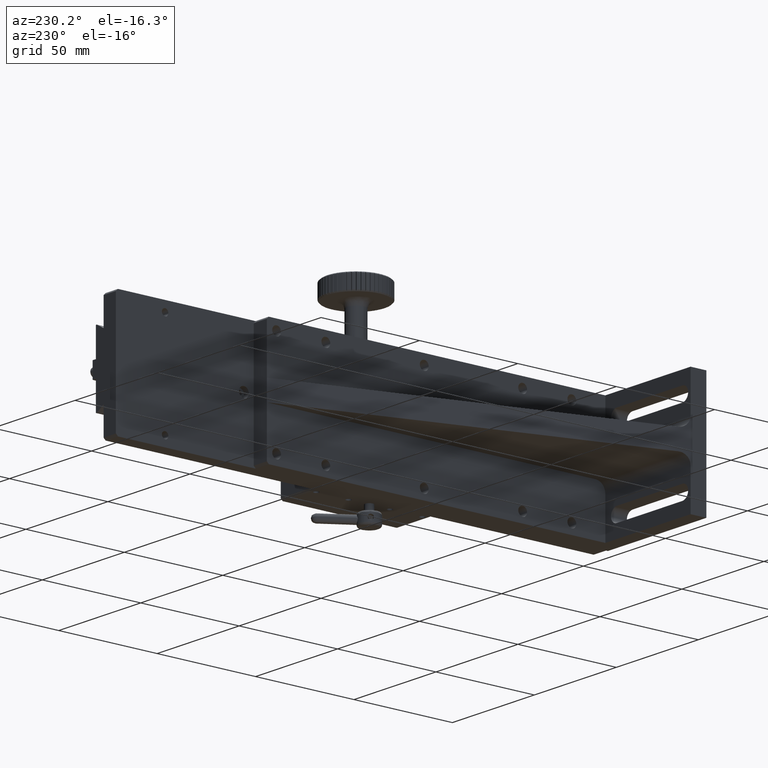
[diagram: clean part render]
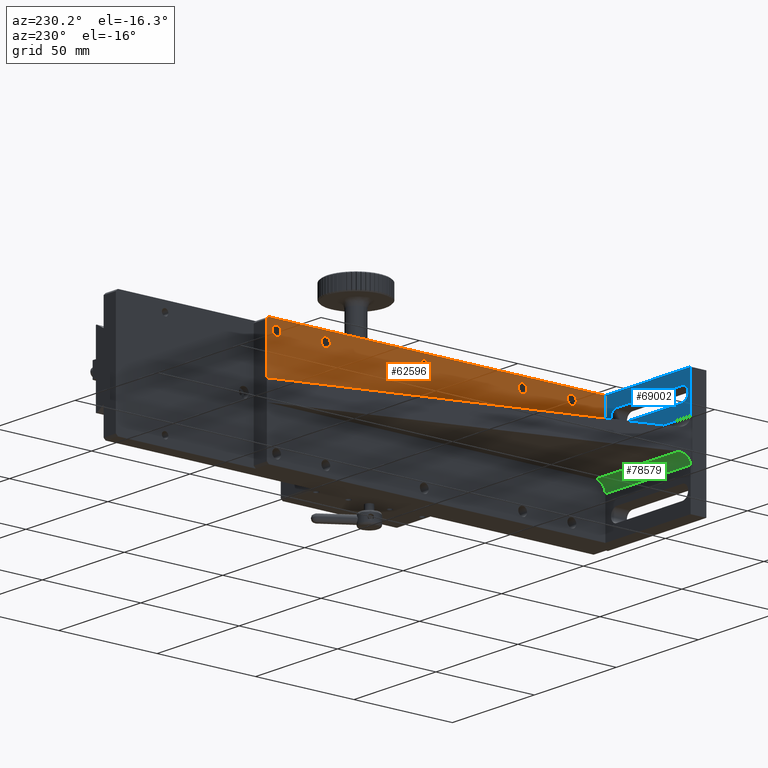
[diagram: same view with three faces highlighted in distinct colors, each labeled with its STEP entity id]
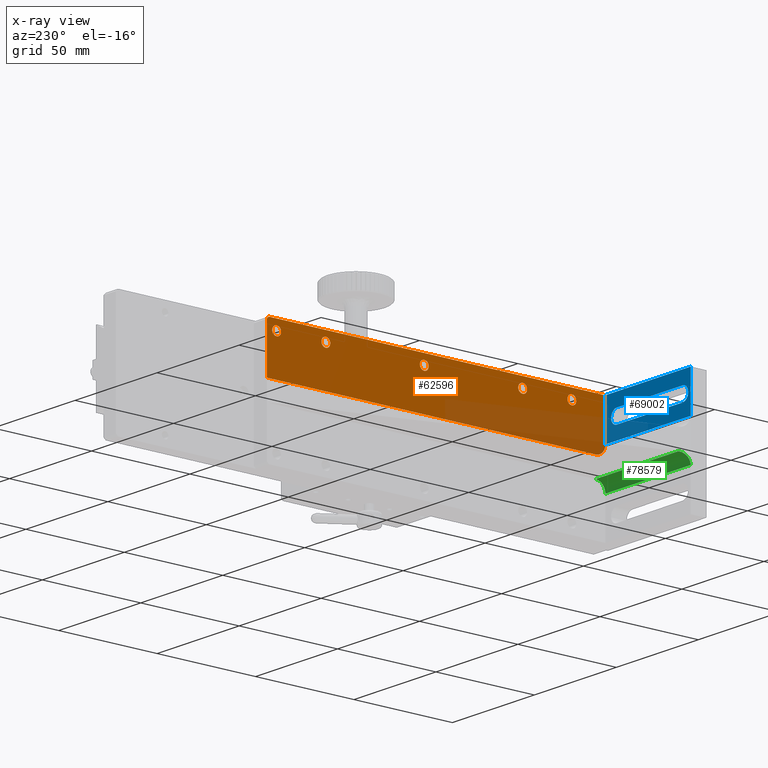
[diagram: x-ray of the same camera — body ghosted, the three highlighted faces saturated]
A machine part, auxiliary view with three faces highlighted in distinct colors.
The next image is the same camera in x-ray (body ghosted, the three faces saturated) — at least one of them is partly hidden behind the body in this view.
Their STEP definitions:

[orange] entity #62596 — the highlighted planar face has unit normal (1, -0, -0).
#465 = CARTESIAN_POINT ( 'NONE',  ( 55.70955724085325045, 176.1604683425934184, 147.9908711668431636 ) ) ;
#1467 = ORIENTED_EDGE ( 'NONE', *, *, #47193, .T. ) ;
#2368 = CARTESIAN_POINT ( 'NONE',  ( 55.70955724085324334, 276.1604683425934468, 145.7408711668431636 ) ) ;
#2511 = CARTESIAN_POINT ( 'NONE',  ( 55.70955724085322913, 226.1604683425933899, 143.4908711668431067 ) ) ;
#3060 = CARTESIAN_POINT ( 'NONE',  ( 55.70955724085327176, 306.1604683425933899, 150.7408711668431351 ) ) ;
#4088 = EDGE_LOOP ( 'NONE', ( #56648 ) ) ;
#5711 = CARTESIAN_POINT ( 'NONE',  ( 55.70955724085324334, 151.1604683425934184, 145.7408711668431636 ) ) ;
#7149 = VERTEX_POINT ( 'NONE', #93540 ) ;
#8177 = EDGE_CURVE ( 'NONE', #7149, #60804, #108530, .T. ) ;
#8209 = CARTESIAN_POINT ( 'NONE',  ( 55.70955724085309413, 139.1604683425934752, 125.7408711668431494 ) ) ;
#8615 = CIRCLE ( 'NONE', #69589, 2.250000000000001776 ) ;
#9620 = ORIENTED_EDGE ( 'NONE', *, *, #37493, .F. ) ;
#10706 = DIRECTION ( 'NONE',  ( 0.000000000000000000, -0.7071067811865376918, 0.7071067811865574537 ) ) ;
#11398 = CARTESIAN_POINT ( 'NONE',  ( 55.70955724085326466, 305.1604683425933899, 150.7408711668431351 ) ) ;
#14018 = DIRECTION ( 'NONE',  ( 1.000000000000000000, -0.000000000000000000, -6.982962677686266711E-15 ) ) ;
#14920 = CARTESIAN_POINT ( 'NONE',  ( 55.70955724085322913, 306.1604683425934468, 149.7408711668431351 ) ) ;
#18347 = AXIS2_PLACEMENT_3D ( 'NONE', #3060, #106808, #37297 ) ;
#19444 = CIRCLE ( 'NONE', #46282, 2.250000000000001776 ) ;
#19676 = LINE ( 'NONE', #29180, #45579 ) ;
#19927 = VERTEX_POINT ( 'NONE', #104044 ) ;
#20476 = FACE_BOUND ( 'NONE', #43266, .T. ) ;
#21032 = CARTESIAN_POINT ( 'NONE',  ( 55.70955724085325755, 276.1604683425934468, 147.9908711668431636 ) ) ;
#21567 = PLANE ( 'NONE',  #18347 ) ;
#21779 = VECTOR ( 'NONE', #100133, 1000.000000000000000 ) ;
#22661 = EDGE_CURVE ( 'NONE', #92389, #92389, #45335, .T. ) ;
#22768 = CIRCLE ( 'NONE', #62176, 5.000000000000004441 ) ;
#22830 = EDGE_LOOP ( 'NONE', ( #70249, #9620, #49365, #62587, #40779, #23261 ) ) ;
#23101 = DIRECTION ( 'NONE',  ( -6.167905692361976222E-15, 0.000000000000000000, -1.000000000000000000 ) ) ;
#23261 = ORIENTED_EDGE ( 'NONE', *, *, #8177, .T. ) ;
#24191 = CARTESIAN_POINT ( 'NONE',  ( 55.70955724085310123, 306.1604683425933899, 120.7408711668433199 ) ) ;
#24216 = VERTEX_POINT ( 'NONE', #58437 ) ;
#24896 = CARTESIAN_POINT ( 'NONE',  ( 55.70955724085325755, 134.1604683425934184, 150.7408711668431351 ) ) ;
#28074 = LINE ( 'NONE', #87579, #110502 ) ;
#28732 = DIRECTION ( 'NONE',  ( 1.000000000000000000, -0.000000000000000000, -6.982962677686266711E-15 ) ) ;
#28867 = FACE_BOUND ( 'NONE', #97398, .T. ) ;
#29180 = CARTESIAN_POINT ( 'NONE',  ( 55.70955724085310123, 306.1604683425933899, 125.7408711668431494 ) ) ;
#29874 = AXIS2_PLACEMENT_3D ( 'NONE', #95923, #52738, #88075 ) ;
#29959 = CIRCLE ( 'NONE', #101616, 2.250000000000001776 ) ;
#31502 = DIRECTION ( 'NONE',  ( 1.000000000000000000, 0.000000000000000000, -6.982962677686266711E-15 ) ) ;
#33609 = EDGE_CURVE ( 'NONE', #82048, #60804, #28074, .T. ) ;
#34108 = EDGE_CURVE ( 'NONE', #56783, #94596, #22768, .T. ) ;
#37297 = DIRECTION ( 'NONE',  ( -6.982962677686266711E-15, 0.000000000000000000, -1.000000000000000000 ) ) ;
#37493 = EDGE_CURVE ( 'NONE', #79415, #82048, #39349, .T. ) ;
#38341 = EDGE_CURVE ( 'NONE', #19927, #19927, #56795, .T. ) ;
#38415 = FACE_OUTER_BOUND ( 'NONE', #22830, .T. ) ;
#38963 = VERTEX_POINT ( 'NONE', #21032 ) ;
#39349 = LINE ( 'NONE', #24191, #78521 ) ;
#40678 = EDGE_CURVE ( 'NONE', #38963, #38963, #29959, .T. ) ;
#40779 = ORIENTED_EDGE ( 'NONE', *, *, #78210, .F. ) ;
#41494 = DIRECTION ( 'NONE',  ( 6.167905692361976222E-15, 0.000000000000000000, 1.000000000000000000 ) ) ;
#43266 = EDGE_LOOP ( 'NONE', ( #71581 ) ) ;
#44196 = CARTESIAN_POINT ( 'NONE',  ( 55.70955724085312966, 139.1604683425934752, 130.7408711668431636 ) ) ;
#45335 = CIRCLE ( 'NONE', #63281, 2.250000000000001776 ) ;
#45579 = VECTOR ( 'NONE', #53894, 1000.000000000000000 ) ;
#46282 = AXIS2_PLACEMENT_3D ( 'NONE', #5711, #31502, #23101 ) ;
#46983 = EDGE_LOOP ( 'NONE', ( #54453 ) ) ;
#47193 = EDGE_CURVE ( 'NONE', #24216, #24216, #19444, .T. ) ;
#49365 = ORIENTED_EDGE ( 'NONE', *, *, #71761, .F. ) ;
#52738 = DIRECTION ( 'NONE',  ( 1.000000000000000000, 0.000000000000000000, -6.982962677686266711E-15 ) ) ;
#53894 = DIRECTION ( 'NONE',  ( 6.051360962709793078E-17, 1.000000000000000000, -4.225642775181012154E-31 ) ) ;
#54453 = ORIENTED_EDGE ( 'NONE', *, *, #40678, .T. ) ;
#56648 = ORIENTED_EDGE ( 'NONE', *, *, #98504, .T. ) ;
#56783 = VERTEX_POINT ( 'NONE', #109452 ) ;
#56795 = CIRCLE ( 'NONE', #29874, 2.250000000000001776 ) ;
#58437 = CARTESIAN_POINT ( 'NONE',  ( 55.70955724085322913, 151.1604683425934184, 143.4908711668431636 ) ) ;
#60804 = VERTEX_POINT ( 'NONE', #11398 ) ;
#62176 = AXIS2_PLACEMENT_3D ( 'NONE', #44196, #110928, #68373 ) ;
#62587 = ORIENTED_EDGE ( 'NONE', *, *, #34108, .F. ) ;
#62596 = ADVANCED_FACE ( 'NONE', ( #38415, #81055, #106266, #20476, #28867, #79933 ), #21567, .F. ) ;
#63281 = AXIS2_PLACEMENT_3D ( 'NONE', #102818, #110672, #68124 ) ;
#68124 = DIRECTION ( 'NONE',  ( -6.167905692361976222E-15, 0.000000000000000000, -1.000000000000000000 ) ) ;
#68373 = DIRECTION ( 'NONE',  ( -6.938893903907222067E-15, 0.000000000000000000, -1.000000000000000000 ) ) ;
#69589 = AXIS2_PLACEMENT_3D ( 'NONE', #108205, #14018, #41494 ) ;
#70249 = ORIENTED_EDGE ( 'NONE', *, *, #33609, .F. ) ;
#71581 = ORIENTED_EDGE ( 'NONE', *, *, #38341, .T. ) ;
#71715 = EDGE_LOOP ( 'NONE', ( #73340 ) ) ;
#71761 = EDGE_CURVE ( 'NONE', #94596, #79415, #19676, .T. ) ;
#71974 = DIRECTION ( 'NONE',  ( 6.167905692361976222E-15, 0.000000000000000000, 1.000000000000000000 ) ) ;
#73340 = ORIENTED_EDGE ( 'NONE', *, *, #22661, .T. ) ;
#78210 = EDGE_CURVE ( 'NONE', #7149, #56783, #101717, .T. ) ;
#78521 = VECTOR ( 'NONE', #81439, 1000.000000000000000 ) ;
#79415 = VERTEX_POINT ( 'NONE', #93814 ) ;
#79933 = FACE_BOUND ( 'NONE', #71715, .T. ) ;
#81055 = FACE_BOUND ( 'NONE', #4088, .T. ) ;
#81439 = DIRECTION ( 'NONE',  ( 0.000000000000000000, -0.000000000000000000, 1.000000000000000000 ) ) ;
#82048 = VERTEX_POINT ( 'NONE', #14920 ) ;
#82229 = CARTESIAN_POINT ( 'NONE',  ( 55.70955724085325755, 306.1604683425933899, 150.7408711668431636 ) ) ;
#85304 = VECTOR ( 'NONE', #110666, 1000.000000000000000 ) ;
#87579 = CARTESIAN_POINT ( 'NONE',  ( 55.70955724085326466, 306.1604683425933899, 149.7408711668431920 ) ) ;
#88075 = DIRECTION ( 'NONE',  ( -6.167905692361976222E-15, 0.000000000000000000, -1.000000000000000000 ) ) ;
#92389 = VERTEX_POINT ( 'NONE', #2511 ) ;
#93085 = VERTEX_POINT ( 'NONE', #465 ) ;
#93540 = CARTESIAN_POINT ( 'NONE',  ( 55.70955724085325755, 134.1604683425934184, 150.7408711668431351 ) ) ;
#93814 = CARTESIAN_POINT ( 'NONE',  ( 55.70955724085308702, 306.1604683425933899, 125.7408711668431494 ) ) ;
#94596 = VERTEX_POINT ( 'NONE', #8209 ) ;
#95923 = CARTESIAN_POINT ( 'NONE',  ( 55.70955724085324334, 301.1604683425933899, 145.7408711668431067 ) ) ;
#97398 = EDGE_LOOP ( 'NONE', ( #1467 ) ) ;
#98504 = EDGE_CURVE ( 'NONE', #93085, #93085, #8615, .T. ) ;
#100133 = DIRECTION ( 'NONE',  ( 0.000000000000000000, 1.000000000000000000, 0.000000000000000000 ) ) ;
#101616 = AXIS2_PLACEMENT_3D ( 'NONE', #2368, #28732, #71974 ) ;
#101717 = LINE ( 'NONE', #24896, #85304 ) ;
#102818 = CARTESIAN_POINT ( 'NONE',  ( 55.70955724085324334, 226.1604683425933899, 145.7408711668431067 ) ) ;
#104044 = CARTESIAN_POINT ( 'NONE',  ( 55.70955724085323624, 301.1604683425933899, 143.4908711668431067 ) ) ;
#106266 = FACE_BOUND ( 'NONE', #46983, .T. ) ;
#106808 = DIRECTION ( 'NONE',  ( 1.000000000000000000, -6.051360962709793078E-17, -6.982962677686266711E-15 ) ) ;
#108205 = CARTESIAN_POINT ( 'NONE',  ( 55.70955724085324334, 176.1604683425934184, 145.7408711668431636 ) ) ;
#108530 = LINE ( 'NONE', #82229, #21779 ) ;
#109452 = CARTESIAN_POINT ( 'NONE',  ( 55.70955724085312255, 134.1604683425934184, 130.7408711668433625 ) ) ;
#110502 = VECTOR ( 'NONE', #10706, 999.9999999999998863 ) ;
#110666 = DIRECTION ( 'NONE',  ( -6.982962677686266711E-15, 0.000000000000000000, -1.000000000000000000 ) ) ;
#110672 = DIRECTION ( 'NONE',  ( 1.000000000000000000, 0.000000000000000000, -6.982962677686266711E-15 ) ) ;
#110928 = DIRECTION ( 'NONE',  ( 1.000000000000000000, -1.334402673828313339E-16, -6.982962677686266711E-15 ) ) ;

[blue] entity #69002 — the highlighted planar face has unit normal (-0, -1, 0).
#304 = ORIENTED_EDGE ( 'NONE', *, *, #31994, .F. ) ;
#712 = LINE ( 'NONE', #76505, #93936 ) ;
#1044 = VERTEX_POINT ( 'NONE', #33168 ) ;
#3202 = CARTESIAN_POINT ( 'NONE',  ( 55.70955724085325755, 134.1604683425934184, 137.2408711668432204 ) ) ;
#5363 = EDGE_CURVE ( 'NONE', #34121, #7149, #28091, .T. ) ;
#6278 = CARTESIAN_POINT ( 'NONE',  ( 48.70955724085322913, 134.1604683425934184, 144.2408711668433341 ) ) ;
#7149 = VERTEX_POINT ( 'NONE', #93540 ) ;
#7393 = LINE ( 'NONE', #108899, #66161 ) ;
#8320 = CARTESIAN_POINT ( 'NONE',  ( 3.709557240853277094, 134.1604683425934184, 150.7408711668434194 ) ) ;
#12219 = EDGE_LOOP ( 'NONE', ( #60960, #64822, #304, #38760 ) ) ;
#15594 = CIRCLE ( 'NONE', #29881, 3.499999999999999556 ) ;
#15891 = CARTESIAN_POINT ( 'NONE',  ( 55.70955724085325755, 134.1604683425934184, 150.7408711668431351 ) ) ;
#16117 = CARTESIAN_POINT ( 'NONE',  ( 8.709557240853204263, 134.1604683425934184, 140.7408711668435046 ) ) ;
#16192 = EDGE_CURVE ( 'NONE', #105021, #51182, #71339, .T. ) ;
#18282 = CARTESIAN_POINT ( 'NONE',  ( 8.709557240853195381, 134.1604683425934184, 137.2408711668433625 ) ) ;
#20613 = DIRECTION ( 'NONE',  ( -1.000000000000000000, 1.334402673828313339E-16, -0.000000000000000000 ) ) ;
#21221 = VERTEX_POINT ( 'NONE', #18282 ) ;
#22815 = VERTEX_POINT ( 'NONE', #105020 ) ;
#24896 = CARTESIAN_POINT ( 'NONE',  ( 55.70955724085325755, 134.1604683425934184, 150.7408711668431351 ) ) ;
#26727 = EDGE_CURVE ( 'NONE', #1044, #56783, #712, .T. ) ;
#28091 = LINE ( 'NONE', #71889, #100409 ) ;
#28979 = VECTOR ( 'NONE', #46624, 1000.000000000000000 ) ;
#29881 = AXIS2_PLACEMENT_3D ( 'NONE', #16117, #48662, #32380 ) ;
#30420 = EDGE_LOOP ( 'NONE', ( #101843, #44681, #42215, #56220 ) ) ;
#31994 = EDGE_CURVE ( 'NONE', #21221, #105021, #15594, .T. ) ;
#32380 = DIRECTION ( 'NONE',  ( -1.000000000000000000, 0.000000000000000000, 0.000000000000000000 ) ) ;
#33168 = CARTESIAN_POINT ( 'NONE',  ( 3.709557240853140758, 134.1604683425934184, 130.7408711668435330 ) ) ;
#34121 = VERTEX_POINT ( 'NONE', #8320 ) ;
#34662 = CIRCLE ( 'NONE', #79446, 3.499999999999996003 ) ;
#35391 = VECTOR ( 'NONE', #20613, 1000.000000000000000 ) ;
#36614 = DIRECTION ( 'NONE',  ( -1.000000000000000000, 0.000000000000000000, 0.000000000000000000 ) ) ;
#38760 = ORIENTED_EDGE ( 'NONE', *, *, #39902, .F. ) ;
#39902 = EDGE_CURVE ( 'NONE', #22815, #21221, #88507, .T. ) ;
#41729 = DIRECTION ( 'NONE',  ( 1.000000000000000000, -1.334402673828313339E-16, 0.000000000000000000 ) ) ;
#42215 = ORIENTED_EDGE ( 'NONE', *, *, #5363, .T. ) ;
#44681 = ORIENTED_EDGE ( 'NONE', *, *, #50962, .T. ) ;
#45048 = DIRECTION ( 'NONE',  ( 2.168404344971010347E-16, 1.000000000000000000, -1.514188661106530136E-30 ) ) ;
#46624 = DIRECTION ( 'NONE',  ( 1.000000000000000000, -1.334402673828313339E-16, 0.000000000000000000 ) ) ;
#48662 = DIRECTION ( 'NONE',  ( 2.168404344971010347E-16, 1.000000000000000000, -1.514188661106530136E-30 ) ) ;
#50962 = EDGE_CURVE ( 'NONE', #1044, #34121, #7393, .T. ) ;
#51182 = VERTEX_POINT ( 'NONE', #6278 ) ;
#52362 = CARTESIAN_POINT ( 'NONE',  ( 48.70955724085320782, 134.1604683425934184, 140.7408711668432204 ) ) ;
#56220 = ORIENTED_EDGE ( 'NONE', *, *, #78210, .T. ) ;
#56783 = VERTEX_POINT ( 'NONE', #109452 ) ;
#57962 = PLANE ( 'NONE',  #99110 ) ;
#60960 = ORIENTED_EDGE ( 'NONE', *, *, #67956, .F. ) ;
#62337 = DIRECTION ( 'NONE',  ( 1.000000000000000000, -0.000000000000000000, -6.982962677686266711E-15 ) ) ;
#64822 = ORIENTED_EDGE ( 'NONE', *, *, #16192, .F. ) ;
#66161 = VECTOR ( 'NONE', #74755, 1000.000000000000000 ) ;
#67956 = EDGE_CURVE ( 'NONE', #51182, #22815, #34662, .T. ) ;
#69002 = ADVANCED_FACE ( 'NONE', ( #83786, #85419 ), #57962, .F. ) ;
#71339 = LINE ( 'NONE', #81381, #28979 ) ;
#71889 = CARTESIAN_POINT ( 'NONE',  ( 63.70955724085327887, 134.1604683425934184, 150.7408711668431351 ) ) ;
#74194 = CARTESIAN_POINT ( 'NONE',  ( 8.709557240853218474, 134.1604683425934184, 144.2408711668434762 ) ) ;
#74755 = DIRECTION ( 'NONE',  ( 6.982962677686266711E-15, -0.000000000000000000, 1.000000000000000000 ) ) ;
#76505 = CARTESIAN_POINT ( 'NONE',  ( 55.70955724085325755, 134.1604683425934184, 130.7408711668435615 ) ) ;
#78210 = EDGE_CURVE ( 'NONE', #7149, #56783, #101717, .T. ) ;
#79446 = AXIS2_PLACEMENT_3D ( 'NONE', #52362, #45048, #36614 ) ;
#81381 = CARTESIAN_POINT ( 'NONE',  ( 55.70955724085325755, 134.1604683425934184, 144.2408711668434762 ) ) ;
#83786 = FACE_OUTER_BOUND ( 'NONE', #30420, .T. ) ;
#85304 = VECTOR ( 'NONE', #110666, 1000.000000000000000 ) ;
#85419 = FACE_BOUND ( 'NONE', #12219, .T. ) ;
#88507 = LINE ( 'NONE', #3202, #35391 ) ;
#91632 = DIRECTION ( 'NONE',  ( -1.334402673828313339E-16, -1.000000000000000000, 9.318084068347872641E-31 ) ) ;
#93540 = CARTESIAN_POINT ( 'NONE',  ( 55.70955724085325755, 134.1604683425934184, 150.7408711668431351 ) ) ;
#93936 = VECTOR ( 'NONE', #41729, 1000.000000000000000 ) ;
#99110 = AXIS2_PLACEMENT_3D ( 'NONE', #15891, #91632, #109516 ) ;
#100409 = VECTOR ( 'NONE', #62337, 1000.000000000000000 ) ;
#101717 = LINE ( 'NONE', #24896, #85304 ) ;
#101843 = ORIENTED_EDGE ( 'NONE', *, *, #26727, .F. ) ;
#105020 = CARTESIAN_POINT ( 'NONE',  ( 48.70955724085320071, 134.1604683425934184, 137.2408711668432204 ) ) ;
#105021 = VERTEX_POINT ( 'NONE', #74194 ) ;
#108899 = CARTESIAN_POINT ( 'NONE',  ( 3.709557240853277094, 134.1604683425934184, 150.7408711668435330 ) ) ;
#109452 = CARTESIAN_POINT ( 'NONE',  ( 55.70955724085312255, 134.1604683425934184, 130.7408711668433625 ) ) ;
#109516 = DIRECTION ( 'NONE',  ( 1.000000000000000000, -1.334402673828313339E-16, 0.000000000000000000 ) ) ;
#110666 = DIRECTION ( 'NONE',  ( -6.982962677686266711E-15, 0.000000000000000000, -1.000000000000000000 ) ) ;

[green] entity #78579 — the highlighted cylindrical surface (edge-blend (fillet) strip) has radius 5 mm, axis along (-1, 0, 0).
#4767 = CARTESIAN_POINT ( 'NONE',  ( 55.70955724085302307, 139.1604683425934752, 115.7408711668431778 ) ) ;
#4856 = VERTEX_POINT ( 'NONE', #68578 ) ;
#5115 = CARTESIAN_POINT ( 'NONE',  ( 3.709557240852995541, 134.1604683425934184, 110.7408711668433341 ) ) ;
#5923 = AXIS2_PLACEMENT_3D ( 'NONE', #25301, #44352, #61739 ) ;
#7120 = CARTESIAN_POINT ( 'NONE',  ( 55.70955724085298044, 134.1604683425934184, 110.7408711668431636 ) ) ;
#7669 = LINE ( 'NONE', #23953, #101044 ) ;
#9031 =( BOUNDED_CURVE ( )  B_SPLINE_CURVE ( 3, ( #87828, #62567, #45190, #79405 ),
 .UNSPECIFIED., .F., .T. ) 
 B_SPLINE_CURVE_WITH_KNOTS ( ( 4, 4 ),
 ( 6.644293101693656329E-16, 1.570796326794902109 ),
 .UNSPECIFIED. ) 
 CURVE ( )  GEOMETRIC_REPRESENTATION_ITEM ( )  RATIONAL_B_SPLINE_CURVE ( ( 1.000000000000000000, 0.8047378541243637162, 0.8047378541243637162, 1.000000000000000000 ) ) 
 REPRESENTATION_ITEM ( '' )  );
#19242 = CYLINDRICAL_SURFACE ( 'NONE', #81755, 5.000000000000004441 ) ;
#23395 = DIRECTION ( 'NONE',  ( -1.000000000000000000, 1.334402673828313339E-16, -0.000000000000000000 ) ) ;
#23953 = CARTESIAN_POINT ( 'NONE',  ( 55.70955724085325755, 134.1604683425934184, 110.7408711668431494 ) ) ;
#25301 = CARTESIAN_POINT ( 'NONE',  ( 55.70955724085298044, 139.1604683425934752, 110.7408711668431636 ) ) ;
#25774 = LINE ( 'NONE', #34738, #87037 ) ;
#26973 = ORIENTED_EDGE ( 'NONE', *, *, #66905, .T. ) ;
#27380 = CIRCLE ( 'NONE', #5923, 5.000000000000004441 ) ;
#32915 = VERTEX_POINT ( 'NONE', #4767 ) ;
#34738 = CARTESIAN_POINT ( 'NONE',  ( 33.70955724085303729, 139.1604683425934752, 115.7408711668433199 ) ) ;
#36044 = FACE_OUTER_BOUND ( 'NONE', #103969, .T. ) ;
#44352 = DIRECTION ( 'NONE',  ( 1.000000000000000000, -1.334402673828313339E-16, -6.982962677686266711E-15 ) ) ;
#45036 = DIRECTION ( 'NONE',  ( -1.000000000000000000, 1.334402673828313339E-16, 6.982962677686266711E-15 ) ) ;
#45190 = CARTESIAN_POINT ( 'NONE',  ( 4.335694021184465896, 136.2315361544589507, 115.7408711668435757 ) ) ;
#46712 = CARTESIAN_POINT ( 'NONE',  ( 33.70955724085300176, 139.1604683425934752, 110.7408711668433199 ) ) ;
#61739 = DIRECTION ( 'NONE',  ( 6.938893903907222067E-15, 0.000000000000000000, 1.000000000000000000 ) ) ;
#62567 = CARTESIAN_POINT ( 'NONE',  ( 3.709557240853024407, 134.1604683425934468, 113.6698033549780860 ) ) ;
#65145 = EDGE_CURVE ( 'NONE', #32915, #70341, #27380, .T. ) ;
#66359 = ORIENTED_EDGE ( 'NONE', *, *, #81823, .F. ) ;
#66905 = EDGE_CURVE ( 'NONE', #72405, #4856, #9031, .T. ) ;
#68578 = CARTESIAN_POINT ( 'NONE',  ( 5.221185147829785933, 139.1604683425935036, 115.7408711668435188 ) ) ;
#69969 = EDGE_CURVE ( 'NONE', #70341, #72405, #7669, .T. ) ;
#70341 = VERTEX_POINT ( 'NONE', #7120 ) ;
#70863 = ORIENTED_EDGE ( 'NONE', *, *, #65145, .T. ) ;
#72405 = VERTEX_POINT ( 'NONE', #5115 ) ;
#78579 = ADVANCED_FACE ( 'NONE', ( #36044 ), #19242, .F. ) ;
#79405 = CARTESIAN_POINT ( 'NONE',  ( 5.221185147829785933, 139.1604683425935036, 115.7408711668435188 ) ) ;
#81755 = AXIS2_PLACEMENT_3D ( 'NONE', #46712, #45036, #88793 ) ;
#81823 = EDGE_CURVE ( 'NONE', #32915, #4856, #25774, .T. ) ;
#87037 = VECTOR ( 'NONE', #94779, 1000.000000000000000 ) ;
#87828 = CARTESIAN_POINT ( 'NONE',  ( 3.709557240852995541, 134.1604683425934184, 110.7408711668433341 ) ) ;
#88793 = DIRECTION ( 'NONE',  ( 6.938893903907222067E-15, 0.000000000000000000, 1.000000000000000000 ) ) ;
#94779 = DIRECTION ( 'NONE',  ( -1.000000000000000000, 1.334402673828313339E-16, 6.982962677686266711E-15 ) ) ;
#101044 = VECTOR ( 'NONE', #23395, 1000.000000000000000 ) ;
#101611 = ORIENTED_EDGE ( 'NONE', *, *, #69969, .T. ) ;
#103969 = EDGE_LOOP ( 'NONE', ( #101611, #26973, #66359, #70863 ) ) ;